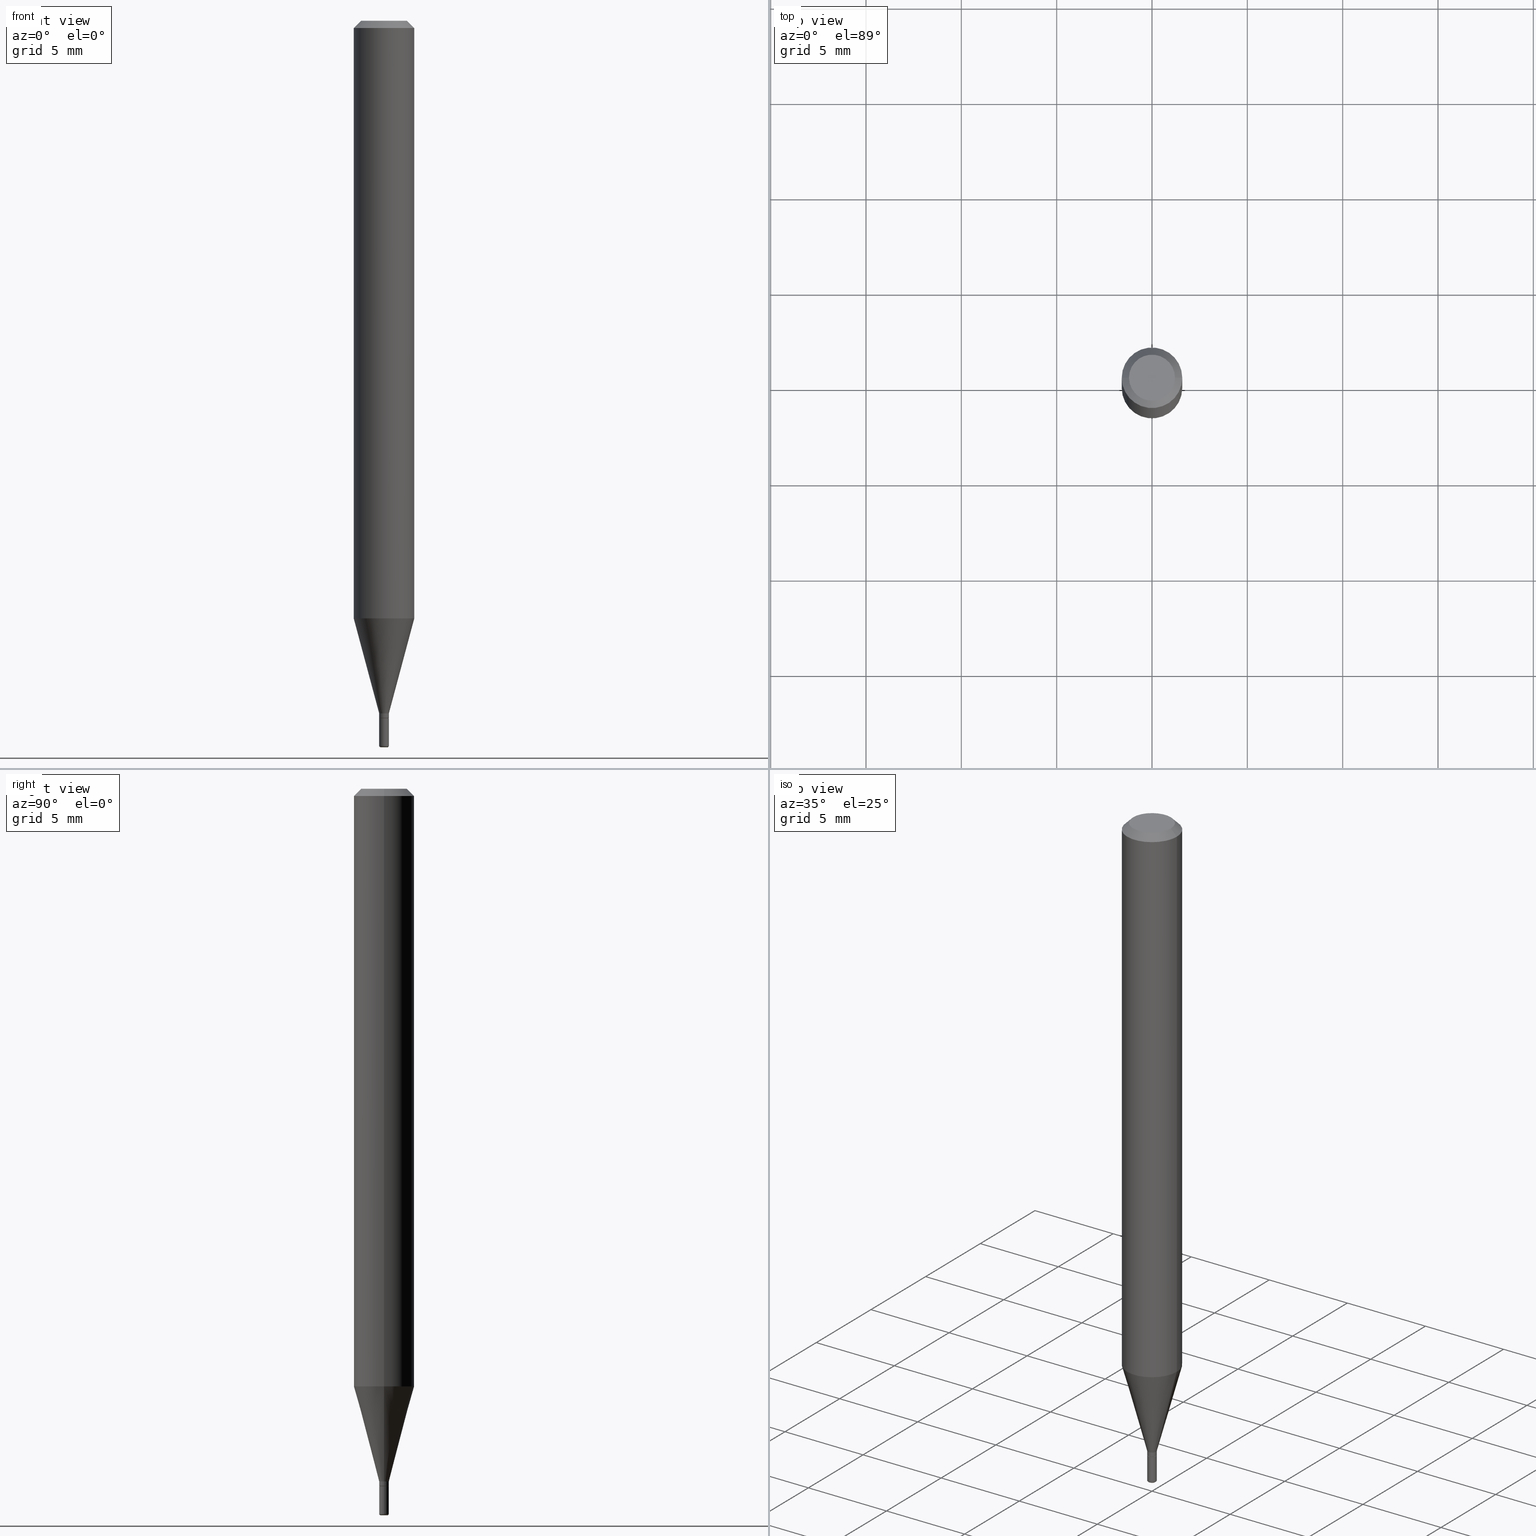
[diagram: canonical four-view strip — front | top / right | iso, engineering-drawing reading convention]
A machine part, canonical four-view strip (front | top / right | iso — engineering-drawing reading convention). The complete STEP part file that produces these views, byte-faithful:
ISO-10303-21;
HEADER;
FILE_DESCRIPTION (( 'STEP AP203' ),
    '1' );
FILE_NAME ('08503.STEP',
    '2024-02-29T19:38:58',
    ( '' ),
    ( '' ),
    'SwSTEP 2.0',
    'SolidWorks 2023',
    '' );
FILE_SCHEMA (( 'CONFIG_CONTROL_DESIGN' ));
ENDSEC;

DATA;
#1 = CALENDAR_DATE ( 2024, 29, 2 ) ;
#2 = ORIENTED_EDGE ( 'NONE', *, *, #403, .T. ) ;
#3 = MANIFOLD_SOLID_BREP ( 'Body-Move/Copy2[1]', #30 ) ;
#4 = DIRECTION ( 'NONE',  ( 1.000000000000000000, -6.982962677686266711E-15, 4.852736867747365086E-29 ) ) ;
#5 = ORIENTED_EDGE ( 'NONE', *, *, #494, .F. ) ;
#6 = CARTESIAN_POINT ( 'NONE',  ( -0.006999999999999999278, -5.177009572744982887E-15, -1.497000000000000108 ) ) ;
#7 = ORIENTED_EDGE ( 'NONE', *, *, #69, .T. ) ;
#8 = CIRCLE ( 'NONE', #479, 0.009999999999999911737 ) ;
#9 = DIRECTION ( 'NONE',  ( -2.445468806185136597E-29, 3.491481338843145583E-15, 1.000000000000000000 ) ) ;
#10 = PLANE ( 'NONE',  #27 ) ;
#11 = DIRECTION ( 'NONE',  ( -2.445468806185136597E-29, 3.491481338843145583E-15, 1.000000000000000000 ) ) ;
#12 = UNCERTAINTY_MEASURE_WITH_UNIT (LENGTH_MEASURE( 1.000000000000000082E-05 ), #420, 'distance_accuracy_value', 'NONE');
#13 = CARTESIAN_POINT ( 'NONE',  ( 3.497020392844744638E-29, -4.992818314545696633E-15, -1.429999999999999716 ) ) ;
#14 = CC_DESIGN_PERSON_AND_ORGANIZATION_ASSIGNMENT ( #463, #32, ( #215 ) ) ;
#15 = AXIS2_PLACEMENT_3D ( 'NONE', #360, #512, #239 ) ;
#16 = DIRECTION ( 'NONE',  ( -2.438088387897960049E-29, 3.491481338843145188E-15, 1.000000000000000000 ) ) ;
#17 = ADVANCED_BREP_SHAPE_REPRESENTATION ( '08503', ( #3, #175, #503 ), #438 ) ;
#18 = DIRECTION ( 'NONE',  ( 1.000000000000000000, -6.982962677686332186E-15, 0.000000000000000000 ) ) ;
#19 = ADVANCED_FACE ( 'NONE', ( #210 ), #448, .T. ) ;
#20 = CARTESIAN_POINT ( 'NONE',  ( 0.000000000000000000, 0.000000000000000000, 0.000000000000000000 ) ) ;
#21 = CIRCLE ( 'NONE', #459, 0.007000000000000001013 ) ;
#22 = DIRECTION ( 'NONE',  ( 0.000000000000000000, 0.000000000000000000, 1.000000000000000000 ) ) ;
#23 = DIRECTION ( 'NONE',  ( 1.000000000000000000, -6.982962677686235945E-15, 0.000000000000000000 ) ) ;
#24 = COORDINATED_UNIVERSAL_TIME_OFFSET ( 5, 0, .BEHIND. ) ;
#25 = CARTESIAN_POINT ( 'NONE',  ( 3.660866802859150328E-29, -5.226747564248189155E-15, -1.497000000000000108 ) ) ;
#26 = FACE_OUTER_BOUND ( 'NONE', #82, .T. ) ;
#27 = AXIS2_PLACEMENT_3D ( 'NONE', #453, #16, #483 ) ;
#28 = DIRECTION ( 'NONE',  ( 1.000000000000000000, -6.982962677686266711E-15, 4.876176775795935793E-29 ) ) ;
#29 = AXIS2_PLACEMENT_3D ( 'NONE', #366, #254, #414 ) ;
#30 = CLOSED_SHELL ( 'NONE', ( #266, #310, #206, #511, #165, #91 ) ) ;
#31 = EDGE_CURVE ( 'NONE', #153, #116, #180, .T. ) ;
#32 = PERSON_AND_ORGANIZATION_ROLE ( 'creator' ) ;
#33 = EDGE_LOOP ( 'NONE', ( #514, #244, #349, #164 ) ) ;
#34 = DIRECTION ( 'NONE',  ( 1.000000000000000000, -6.982962677686395295E-15, 0.000000000000000000 ) ) ;
#35 = EDGE_CURVE ( 'NONE', #464, #444, #43, .T. ) ;
#36 = DIRECTION ( 'NONE',  ( 1.000000000000000000, -6.982962677686239100E-15, 0.000000000000000000 ) ) ;
#37 = EDGE_LOOP ( 'NONE', ( #439, #477, #51, #79 ) ) ;
#38 = COORDINATED_UNIVERSAL_TIME_OFFSET ( 5, 0, .BEHIND. ) ;
#39 = EDGE_LOOP ( 'NONE', ( #283, #2, #401, #408 ) ) ;
#40 = DIRECTION ( 'NONE',  ( -0.7071067811866184050, 7.493145998870609751E-15, 0.7071067811864765185 ) ) ;
#41 = VECTOR ( 'NONE', #402, 39.37007874015748143 ) ;
#42 = CC_DESIGN_SECURITY_CLASSIFICATION ( #96, ( #496 ) ) ;
#43 = CIRCLE ( 'NONE', #209, 0.009999999999999911737 ) ;
#44 = AXIS2_PLACEMENT_3D ( 'NONE', #299, #145, #378 ) ;
#45 = FACE_OUTER_BOUND ( 'NONE', #325, .T. ) ;
#46 = CARTESIAN_POINT ( 'NONE',  ( 0.06250000000000000000, -4.364351673553916694E-16, 3.047610484872459871E-30 ) ) ;
#47 = ORIENTED_EDGE ( 'NONE', *, *, #129, .F. ) ;
#48 = ADVANCED_FACE ( 'NONE', ( #257 ), #307, .T. ) ;
#49 = EDGE_LOOP ( 'NONE', ( #404, #75, #281, #86 ) ) ;
#50 = CARTESIAN_POINT ( 'NONE',  ( 0.009999999999999911737, -5.062647941322559142E-15, -1.429999999999999716 ) ) ;
#51 = ORIENTED_EDGE ( 'NONE', *, *, #385, .T. ) ;
#52 = EDGE_LOOP ( 'NONE', ( #126, #113 ) ) ;
#53 = DIRECTION ( 'NONE',  ( -2.445468806185136597E-29, 3.491481338843145583E-15, 1.000000000000000000 ) ) ;
#54 = CARTESIAN_POINT ( 'NONE',  ( 3.668203209277704335E-29, -5.237222008264717388E-15, -1.499999999999999778 ) ) ;
#55 = EDGE_CURVE ( 'NONE', #274, #116, #140, .T. ) ;
#56 = DIRECTION ( 'NONE',  ( 2.445468806185136597E-29, -3.491481338843145583E-15, -1.000000000000000000 ) ) ;
#57 = LINE ( 'NONE', #336, #446 ) ;
#58 = VECTOR ( 'NONE', #425, 39.37007874015748143 ) ;
#59 = FACE_OUTER_BOUND ( 'NONE', #85, .T. ) ;
#60 = CALENDAR_DATE ( 2024, 29, 2 ) ;
#61 = CARTESIAN_POINT ( 'NONE',  ( -0.009999999999999916941, 7.105427357600942842E-17, -4.918935090254865109E-31 ) ) ;
#62 = CIRCLE ( 'NONE', #138, 0.002999999999999833963 ) ;
#63 = CIRCLE ( 'NONE', #353, 0.009499999999999918232 ) ;
#64 = CIRCLE ( 'NONE', #355, 0.009999999999999833675 ) ;
#65 = CARTESIAN_POINT ( 'NONE',  ( 3.521475080906597305E-29, -5.027733127934130649E-15, -1.440000000000000169 ) ) ;
#66 = CC_DESIGN_PERSON_AND_ORGANIZATION_ASSIGNMENT ( #358, #313, ( #96 ) ) ;
#67 = DIRECTION ( 'NONE',  ( -1.000000000000000000, 6.982962677686265922E-15, -4.876176775795935793E-29 ) ) ;
#68 = DIRECTION ( 'NONE',  ( -2.445468806185136597E-29, 3.491481338843145583E-15, 1.000000000000000000 ) ) ;
#69 = EDGE_CURVE ( 'NONE', #309, #117, #250, .T. ) ;
#70 = ORIENTED_EDGE ( 'NONE', *, *, #99, .T. ) ;
#71 = VECTOR ( 'NONE', #100, 39.37007874015748143 ) ;
#72 = DIRECTION ( 'NONE',  ( 1.000000000000000000, -6.982962677686239100E-15, 0.000000000000000000 ) ) ;
#73 = EDGE_CURVE ( 'NONE', #433, #236, #104, .T. ) ;
#74 = DIRECTION ( 'NONE',  ( -2.445468806185136877E-29, 3.491481338843145188E-15, 1.000000000000000000 ) ) ;
#75 = ORIENTED_EDGE ( 'NONE', *, *, #231, .T. ) ;
#76 = APPROVAL_DATE_TIME ( #267, #490 ) ;
#77 = CARTESIAN_POINT ( 'NONE',  ( 0.007000000000000001013, -5.286102747008521854E-15, -1.499999999999999778 ) ) ;
#78 = CALENDAR_DATE ( 2024, 29, 2 ) ;
#79 = ORIENTED_EDGE ( 'NONE', *, *, #285, .F. ) ;
#80 = CARTESIAN_POINT ( 'NONE',  ( 3.521475080906597305E-29, -5.027733127934130649E-15, -1.440000000000000169 ) ) ;
#81 = CIRCLE ( 'NONE', #501, 0.01000000000000000021 ) ;
#82 = EDGE_LOOP ( 'NONE', ( #482, #127, #119, #389 ) ) ;
#83 = ORIENTED_EDGE ( 'NONE', *, *, #108, .F. ) ;
#84 = DIRECTION ( 'NONE',  ( -1.000000000000000000, 7.105427357600930861E-15, 0.000000000000000000 ) ) ;
#85 = EDGE_LOOP ( 'NONE', ( #359, #195 ) ) ;
#86 = ORIENTED_EDGE ( 'NONE', *, *, #416, .F. ) ;
#87 = DIRECTION ( 'NONE',  ( -2.445468806185136597E-29, 3.491481338843145583E-15, 1.000000000000000000 ) ) ;
#88 = ORIENTED_EDGE ( 'NONE', *, *, #335, .T. ) ;
#89 = ORIENTED_EDGE ( 'NONE', *, *, #35, .T. ) ;
#90 = AXIS2_PLACEMENT_3D ( 'NONE', #112, #269, #4 ) ;
#91 = ADVANCED_FACE ( 'NONE', ( #220 ), #498, .F. ) ;
#92 = CARTESIAN_POINT ( 'NONE',  ( 3.668203209277632395E-31, -5.237222008264614861E-17, -0.01499999999999970281 ) ) ;
#93 = CARTESIAN_POINT ( 'NONE',  ( 0.01000000000000000021, -5.097562754710993158E-15, -1.440000000000000169 ) ) ;
#94 = CYLINDRICAL_SURFACE ( 'NONE', #29, 0.009999999999999916941 ) ;
#95 = AXIS2_PLACEMENT_3D ( 'NONE', #405, #11, #449 ) ;
#96 = SECURITY_CLASSIFICATION ( '', '', #148 ) ;
#97 =( NAMED_UNIT ( * ) SI_UNIT ( $, .STERADIAN. ) SOLID_ANGLE_UNIT ( ) );
#98 =( NAMED_UNIT ( * ) PLANE_ANGLE_UNIT ( ) SI_UNIT ( $, .RADIAN. ) );
#99 = EDGE_CURVE ( 'NONE', #122, #344, #64, .T. ) ;
#100 = DIRECTION ( 'NONE',  ( -2.445468806185136877E-29, 3.491481338843145188E-15, 1.000000000000000000 ) ) ;
#101 = APPROVAL ( #380, 'UNSPECIFIED' ) ;
#102 = AXIS2_PLACEMENT_3D ( 'NONE', #311, #158, #36 ) ;
#103 = AXIS2_PLACEMENT_3D ( 'NONE', #253, #137, #412 ) ;
#104 = CIRCLE ( 'NONE', #221, 0.01000000000000000021 ) ;
#105 = DIRECTION ( 'NONE',  ( 2.438088387897960049E-29, -3.491481338843145188E-15, -1.000000000000000000 ) ) ;
#106 = PERSON ( 'UNSPECIFIED', 'UNSPECIFIED', 'UNSPECIFIED', ('UNSPECIFIED'), ('UNSPECIFIED'), ('UNSPECIFIED') ) ;
#107 = FACE_OUTER_BOUND ( 'NONE', #234, .T. ) ;
#108 = EDGE_CURVE ( 'NONE', #276, #168, #63, .T. ) ;
#109 = CARTESIAN_POINT ( 'NONE',  ( 6.982962677689787249E-17, 0.009999999999994971245, -1.440000000000000169 ) ) ;
#110 = AXIS2_PLACEMENT_3D ( 'NONE', #190, #517, #282 ) ;
#111 = CALENDAR_DATE ( 2024, 29, 2 ) ;
#112 = CARTESIAN_POINT ( 'NONE',  ( -6.680649051745406845E-45, 9.538196290434862081E-31, 2.731847993664263218E-16 ) ) ;
#113 = ORIENTED_EDGE ( 'NONE', *, *, #456, .F. ) ;
#114 = APPROVAL_DATE_TIME ( #466, #340 ) ;
#115 = DIRECTION ( 'NONE',  ( 1.000000000000000000, -6.982962677686254878E-15, 4.883557194083108977E-29 ) ) ;
#116 = VERTEX_POINT ( 'NONE', #141 ) ;
#117 = VERTEX_POINT ( 'NONE', #303 ) ;
#118 = CARTESIAN_POINT ( 'NONE',  ( 0.006999999999999999278, -5.275628302991993622E-15, -1.497000000000000108 ) ) ;
#119 = ORIENTED_EDGE ( 'NONE', *, *, #304, .T. ) ;
#120 = DIRECTION ( 'NONE',  ( 1.000000000000000000, -6.982962677686262766E-15, 0.000000000000000000 ) ) ;
#121 = CIRCLE ( 'NONE', #90, 0.04750000000000000749 ) ;
#122 = VERTEX_POINT ( 'NONE', #225 ) ;
#123 = APPROVAL_PERSON_ORGANIZATION ( #347, #340, #506 ) ;
#124 = CLOSED_SHELL ( 'NONE', ( #136, #162, #255, #443, #19, #473, #48, #462, #407, #419, #368, #361 ) ) ;
#125 = CARTESIAN_POINT ( 'NONE',  ( 3.660866802859150328E-29, -5.226747564248189155E-15, -1.497000000000000108 ) ) ;
#126 = ORIENTED_EDGE ( 'NONE', *, *, #69, .F. ) ;
#127 = ORIENTED_EDGE ( 'NONE', *, *, #456, .T. ) ;
#128 = DIRECTION ( 'NONE',  ( -2.445468806185136877E-29, 3.491481338843145188E-15, 1.000000000000000000 ) ) ;
#129 = EDGE_CURVE ( 'NONE', #168, #396, #461, .T. ) ;
#130 = DIRECTION ( 'NONE',  ( 1.000000000000000000, -6.982962677686297476E-15, 0.000000000000000000 ) ) ;
#131 = AXIS2_PLACEMENT_3D ( 'NONE', #319, #507, #120 ) ;
#132 = DESIGN_CONTEXT ( 'detailed design', #326, 'design' ) ;
#133 = VECTOR ( 'NONE', #451, 39.37007874015748143 ) ;
#134 = DIRECTION ( 'NONE',  ( 2.438088387897960049E-29, -3.491481338843145188E-15, -1.000000000000000000 ) ) ;
#135 = FACE_OUTER_BOUND ( 'NONE', #271, .T. ) ;
#136 = ADVANCED_FACE ( 'NONE', ( #341 ), #228, .T. ) ;
#137 = DIRECTION ( 'NONE',  ( -2.445468806185136597E-29, 3.491481338843145583E-15, 1.000000000000000000 ) ) ;
#138 = AXIS2_PLACEMENT_3D ( 'NONE', #118, #275, #34 ) ;
#139 = AXIS2_PLACEMENT_3D ( 'NONE', #484, #53, #211 ) ;
#140 = LINE ( 'NONE', #223, #58 ) ;
#141 = CARTESIAN_POINT ( 'NONE',  ( -0.06250000000000000000, -1.736458431520275880E-15, -0.01499999999999970281 ) ) ;
#142 = EDGE_CURVE ( 'NONE', #396, #432, #237, .T. ) ;
#143 = LINE ( 'NONE', #465, #262 ) ;
#144 = AXIS2_PLACEMENT_3D ( 'NONE', #388, #272, #399 ) ;
#145 = DIRECTION ( 'NONE',  ( -2.445468806185136597E-29, 3.491481338843145583E-15, 1.000000000000000000 ) ) ;
#146 = ORIENTED_EDGE ( 'NONE', *, *, #440, .T. ) ;
#147 = DIRECTION ( 'NONE',  ( -2.445468806185136597E-29, 3.491481338843145583E-15, 1.000000000000000000 ) ) ;
#148 = SECURITY_CLASSIFICATION_LEVEL ( 'unclassified' ) ;
#149 = DIMENSIONAL_EXPONENTS ( 1.000000000000000000, 0.000000000000000000, 0.000000000000000000, 0.000000000000000000, 0.000000000000000000, 0.000000000000000000, 0.000000000000000000 ) ;
#150 = APPLICATION_CONTEXT ( 'configuration controlled 3d designs of mechanical parts and assemblies' ) ;
#151 = CARTESIAN_POINT ( 'NONE',  ( 0.009999999999999915207, -6.982962677686206560E-17, 4.876176775795893929E-31 ) ) ;
#152 = PERSON_AND_ORGANIZATION_ROLE ( 'design_supplier' ) ;
#153 = VERTEX_POINT ( 'NONE', #339 ) ;
#154 = CC_DESIGN_APPROVAL ( #101, ( #215 ) ) ;
#155 = DIRECTION ( 'NONE',  ( -2.445468806185136597E-29, 3.491481338843145583E-15, 1.000000000000000000 ) ) ;
#156 = ORIENTED_EDGE ( 'NONE', *, *, #346, .F. ) ;
#157 = ORIENTED_EDGE ( 'NONE', *, *, #219, .F. ) ;
#158 = DIRECTION ( 'NONE',  ( -2.445468806185136597E-29, 3.491481338843145583E-15, 1.000000000000000000 ) ) ;
#159 = CC_DESIGN_PERSON_AND_ORGANIZATION_ASSIGNMENT ( #515, #152, ( #496 ) ) ;
#160 = CYLINDRICAL_SURFACE ( 'NONE', #110, 0.009999999999999916941 ) ;
#161 = ORIENTED_EDGE ( 'NONE', *, *, #322, .F. ) ;
#162 = ADVANCED_FACE ( 'NONE', ( #455 ), #312, .T. ) ;
#163 = FACE_OUTER_BOUND ( 'NONE', #33, .T. ) ;
#164 = ORIENTED_EDGE ( 'NONE', *, *, #450, .F. ) ;
#165 = ADVANCED_FACE ( 'NONE', ( #26 ), #489, .T. ) ;
#166 = CARTESIAN_POINT ( 'NONE',  ( 3.668203209277632395E-31, -5.237222008264614861E-17, -0.01499999999999970281 ) ) ;
#167 = CARTESIAN_POINT ( 'NONE',  ( -0.009999999999999916941, -4.954933113688699852E-15, -1.439500000000000224 ) ) ;
#168 = VERTEX_POINT ( 'NONE', #418 ) ;
#169 = DIRECTION ( 'NONE',  ( 0.2588190451025205729, 1.565188264969628081E-15, 0.9659258262890684232 ) ) ;
#170 = CARTESIAN_POINT ( 'NONE',  ( 0.009999999999999911737, -5.062647941322559142E-15, -1.429999999999999716 ) ) ;
#171 = CIRCLE ( 'NONE', #409, 0.04750000000000000749 ) ;
#172 = AXIS2_PLACEMENT_3D ( 'NONE', #424, #265, #428 ) ;
#173 = PRODUCT_DEFINITION_SHAPE ( 'NONE', 'NONE',  #215 ) ;
#174 = DIRECTION ( 'NONE',  ( -1.000000000000000000, 6.982962677686266711E-15, 0.000000000000000000 ) ) ;
#175 = MANIFOLD_SOLID_BREP ( 'Body-Move/Copy2[2]', #124 ) ;
#176 = DIRECTION ( 'NONE',  ( 1.000000000000000000, -6.982962677686297476E-15, 0.000000000000000000 ) ) ;
#177 = MECHANICAL_CONTEXT ( 'NONE', #150, 'mechanical' ) ;
#178 = CARTESIAN_POINT ( 'NONE',  ( 3.520252346503504503E-29, -5.025987387264709145E-15, -1.439500000000000224 ) ) ;
#179 = AXIS2_PLACEMENT_3D ( 'NONE', #356, #392, #192 ) ;
#180 = CIRCLE ( 'NONE', #199, 0.06250000000000000000 ) ;
#181 = EDGE_CURVE ( 'NONE', #344, #236, #182, .T. ) ;
#182 = LINE ( 'NONE', #61, #71 ) ;
#183 = PERSON_AND_ORGANIZATION ( #106, #469 ) ;
#184 = DIRECTION ( 'NONE',  ( 1.000000000000000000, -6.982962677686265922E-15, 4.876176775795935232E-29 ) ) ;
#185 = DIRECTION ( 'NONE',  ( -2.445468806185136597E-29, 3.491481338843145583E-15, 1.000000000000000000 ) ) ;
#186 = AXIS2_PLACEMENT_3D ( 'NONE', #92, #246, #291 ) ;
#187 = EDGE_LOOP ( 'NONE', ( #436, #510, #470, #5 ) ) ;
#188 = DIRECTION ( 'NONE',  ( -2.445468806185136597E-29, 3.491481338843145583E-15, 1.000000000000000000 ) ) ;
#189 = DATE_AND_TIME ( #111, #279 ) ;
#190 = CARTESIAN_POINT ( 'NONE',  ( 0.000000000000000000, 0.000000000000000000, 0.000000000000000000 ) ) ;
#191 = ORIENTED_EDGE ( 'NONE', *, *, #379, .T. ) ;
#192 = DIRECTION ( 'NONE',  ( 1.000000000000000000, -6.982962677686265922E-15, 4.876176775795935232E-29 ) ) ;
#193 = AXIS2_PLACEMENT_3D ( 'NONE', #109, #105, #67 ) ;
#194 = PERSON_AND_ORGANIZATION ( #106, #469 ) ;
#195 = ORIENTED_EDGE ( 'NONE', *, *, #302, .T. ) ;
#196 = CC_DESIGN_APPROVAL ( #340, ( #496 ) ) ;
#197 = EDGE_CURVE ( 'NONE', #444, #274, #143, .T. ) ;
#198 = CARTESIAN_POINT ( 'NONE',  ( -0.009999999999999833675, -5.056186072515151004E-15, -1.497000000000000108 ) ) ;
#199 = AXIS2_PLACEMENT_3D ( 'NONE', #166, #9, #240 ) ;
#200 = AXIS2_PLACEMENT_3D ( 'NONE', #178, #497, #297 ) ;
#201 = ORIENTED_EDGE ( 'NONE', *, *, #416, .T. ) ;
#202 = DATE_AND_TIME ( #78, #415 ) ;
#203 = CARTESIAN_POINT ( 'NONE',  ( -0.06249999999999999306, -3.864633852807968480E-15, -1.234067332602633238 ) ) ;
#204 = ORIENTED_EDGE ( 'NONE', *, *, #226, .T. ) ;
#205 = CARTESIAN_POINT ( 'NONE',  ( -0.009999999999999998473, -5.056186072515150215E-15, -1.440000000000000169 ) ) ;
#206 = ADVANCED_FACE ( 'NONE', ( #107 ), #460, .F. ) ;
#207 = CARTESIAN_POINT ( 'NONE',  ( 0.06250000000000000000, -4.811533449433669144E-16, -0.01499999999999970281 ) ) ;
#208 = VERTEX_POINT ( 'NONE', #224 ) ;
#209 = AXIS2_PLACEMENT_3D ( 'NONE', #321, #478, #338 ) ;
#210 = FACE_OUTER_BOUND ( 'NONE', #481, .T. ) ;
#211 = DIRECTION ( 'NONE',  ( 1.000000000000000000, -6.982962677686297476E-15, 0.000000000000000000 ) ) ;
#212 = DIRECTION ( 'NONE',  ( -0.7071067811865479058, 2.468850131082261005E-15, -0.7071067811865471286 ) ) ;
#213 = FACE_OUTER_BOUND ( 'NONE', #229, .T. ) ;
#214 = DIRECTION ( 'NONE',  ( -1.000000000000000000, 6.982962677686265922E-15, -4.876176775795935793E-29 ) ) ;
#215 = PRODUCT_DEFINITION ( 'UNKNOWN', '', #496, #132 ) ;
#216 = CONICAL_SURFACE ( 'NONE', #421, 0.009499999999999918232, 0.7853981633975486432 ) ;
#217 = CIRCLE ( 'NONE', #103, 0.009999999999999916941 ) ;
#218 = CARTESIAN_POINT ( 'NONE',  ( 3.497020392844744638E-29, -4.992818314545696633E-15, -1.429999999999999716 ) ) ;
#219 = EDGE_CURVE ( 'NONE', #306, #153, #382, .T. ) ;
#220 = FACE_OUTER_BOUND ( 'NONE', #52, .T. ) ;
#221 = AXIS2_PLACEMENT_3D ( 'NONE', #65, #185, #23 ) ;
#222 = DIRECTION ( 'NONE',  ( 1.000000000000000000, 0.000000000000000000, 0.000000000000000000 ) ) ;
#223 = CARTESIAN_POINT ( 'NONE',  ( -0.06250000000000000000, 4.440892098500626162E-16, -3.074334431409316114E-30 ) ) ;
#224 = CARTESIAN_POINT ( 'NONE',  ( -0.04750000000000000749, 3.578768372314221353E-16, 2.731847993664239060E-16 ) ) ;
#225 = CARTESIAN_POINT ( 'NONE',  ( 0.009999999999999833675, -5.296577191025050876E-15, -1.497000000000000108 ) ) ;
#226 = EDGE_CURVE ( 'NONE', #168, #276, #294, .T. ) ;
#227 = CIRCLE ( 'NONE', #131, 0.06250000000000000000 ) ;
#228 = CYLINDRICAL_SURFACE ( 'NONE', #301, 0.009999999999999915207 ) ;
#229 = EDGE_LOOP ( 'NONE', ( #247, #83 ) ) ;
#230 = CYLINDRICAL_SURFACE ( 'NONE', #179, 0.009999999999999915207 ) ;
#231 = EDGE_CURVE ( 'NONE', #274, #306, #513, .T. ) ;
#232 = EDGE_LOOP ( 'NONE', ( #204, #317, #245, #47 ) ) ;
#233 = CALENDAR_DATE ( 2024, 29, 2 ) ;
#234 = EDGE_LOOP ( 'NONE', ( #393, #363 ) ) ;
#235 = DIRECTION ( 'NONE',  ( 7.105427357601001859E-15, 1.000000000000000000, -3.491481338843145583E-15 ) ) ;
#236 = VERTEX_POINT ( 'NONE', #205 ) ;
#237 = CIRCLE ( 'NONE', #200, 0.009999999999999916941 ) ;
#238 = ORIENTED_EDGE ( 'NONE', *, *, #99, .F. ) ;
#239 = DIRECTION ( 'NONE',  ( 1.000000000000000000, -6.982962677686262766E-15, 0.000000000000000000 ) ) ;
#240 = DIRECTION ( 'NONE',  ( 1.000000000000000000, -6.982962677686266711E-15, 0.000000000000000000 ) ) ;
#241 = PERSON_AND_ORGANIZATION_ROLE ( 'creator' ) ;
#242 = ORIENTED_EDGE ( 'NONE', *, *, #197, .F. ) ;
#243 = DIRECTION ( 'NONE',  ( -2.445468806185136597E-29, 3.491481338843145583E-15, 1.000000000000000000 ) ) ;
#244 = ORIENTED_EDGE ( 'NONE', *, *, #494, .T. ) ;
#245 = ORIENTED_EDGE ( 'NONE', *, *, #142, .F. ) ;
#246 = DIRECTION ( 'NONE',  ( -2.445468806185136597E-29, 3.491481338843145583E-15, 1.000000000000000000 ) ) ;
#247 = ORIENTED_EDGE ( 'NONE', *, *, #226, .F. ) ;
#248 = VECTOR ( 'NONE', #411, 39.37007874015748143 ) ;
#249 =( LENGTH_UNIT ( ) NAMED_UNIT ( * ) SI_UNIT ( $, .METRE. ) );
#250 = CIRCLE ( 'NONE', #315, 0.007000000000000001013 ) ;
#251 = CARTESIAN_POINT ( 'NONE',  ( 3.316907271900976589E-16, 0.04750000000000000749, -2.925296391183627249E-17 ) ) ;
#252 = CC_DESIGN_PERSON_AND_ORGANIZATION_ASSIGNMENT ( #476, #241, ( #496 ) ) ;
#253 = CARTESIAN_POINT ( 'NONE',  ( 3.520252346503504503E-29, -5.025987387264709145E-15, -1.439500000000000224 ) ) ;
#254 = DIRECTION ( 'NONE',  ( -2.445468806185136597E-29, 3.491481338843145583E-15, 1.000000000000000000 ) ) ;
#255 = ADVANCED_FACE ( 'NONE', ( #441 ), #371, .T. ) ;
#256 = PERSON_AND_ORGANIZATION ( #106, #469 ) ;
#257 = FACE_OUTER_BOUND ( 'NONE', #49, .T. ) ;
#258 = LENGTH_MEASURE_WITH_UNIT ( LENGTH_MEASURE( 0.02539999999999999897 ), #249 );
#259 = DIRECTION ( 'NONE',  ( -2.445468806185136597E-29, 3.491481338843145583E-15, 1.000000000000000000 ) ) ;
#260 = CIRCLE ( 'NONE', #186, 0.06250000000000000000 ) ;
#261 = CC_DESIGN_APPROVAL ( #490, ( #96 ) ) ;
#262 = VECTOR ( 'NONE', #300, 39.37007874015748143 ) ;
#263 = DIRECTION ( 'NONE',  ( 1.000000000000000000, -6.982962677686332186E-15, 0.000000000000000000 ) ) ;
#264 = CARTESIAN_POINT ( 'NONE',  ( 0.000000000000000000, 0.000000000000000000, 0.000000000000000000 ) ) ;
#265 = DIRECTION ( 'NONE',  ( -2.438088387897960049E-29, 3.491481338843145188E-15, 1.000000000000000000 ) ) ;
#266 = ADVANCED_FACE ( 'NONE', ( #45 ), #364, .T. ) ;
#267 = DATE_AND_TIME ( #1, #487 ) ;
#268 = AXIS2_PLACEMENT_3D ( 'NONE', #264, #502, #28 ) ;
#269 = DIRECTION ( 'NONE',  ( -2.445468806185136597E-29, 3.491481338843145583E-15, 1.000000000000000000 ) ) ;
#270 = EDGE_CURVE ( 'NONE', #276, #432, #395, .T. ) ;
#271 = EDGE_LOOP ( 'NONE', ( #242, #354, #191, #391 ) ) ;
#272 = DIRECTION ( 'NONE',  ( 2.445468806185136597E-29, -3.491481338843145583E-15, -1.000000000000000000 ) ) ;
#273 = EDGE_LOOP ( 'NONE', ( #88, #504, #292, #157 ) ) ;
#274 = VERTEX_POINT ( 'NONE', #203 ) ;
#275 = DIRECTION ( 'NONE',  ( -6.982962677686266711E-15, -1.000000000000000000, 3.491481338843145583E-15 ) ) ;
#276 = VERTEX_POINT ( 'NONE', #442 ) ;
#277 = AXIS2_PLACEMENT_3D ( 'NONE', #6, #235, #84 ) ;
#278 = ORIENTED_EDGE ( 'NONE', *, *, #335, .F. ) ;
#279 = LOCAL_TIME ( 14, 38, 58.00000000000000000, #509 ) ;
#280 = FACE_OUTER_BOUND ( 'NONE', #187, .T. ) ;
#281 = ORIENTED_EDGE ( 'NONE', *, *, #219, .T. ) ;
#282 = DIRECTION ( 'NONE',  ( 1.000000000000000000, -6.982962677686266711E-15, 4.876176775795935232E-29 ) ) ;
#283 = ORIENTED_EDGE ( 'NONE', *, *, #302, .F. ) ;
#284 = LINE ( 'NONE', #372, #248 ) ;
#285 = EDGE_CURVE ( 'NONE', #236, #433, #81, .T. ) ;
#286 = AXIS2_PLACEMENT_3D ( 'NONE', #125, #87, #115 ) ;
#287 = LINE ( 'NONE', #491, #288 ) ;
#288 = VECTOR ( 'NONE', #212, 39.37007874015748143 ) ;
#289 = EDGE_CURVE ( 'NONE', #117, #344, #333, .T. ) ;
#290 = FACE_OUTER_BOUND ( 'NONE', #273, .T. ) ;
#291 = DIRECTION ( 'NONE',  ( 1.000000000000000000, -6.982962677686266711E-15, 0.000000000000000000 ) ) ;
#292 = ORIENTED_EDGE ( 'NONE', *, *, #31, .F. ) ;
#293 = LINE ( 'NONE', #170, #413 ) ;
#294 = CIRCLE ( 'NONE', #102, 0.009499999999999918232 ) ;
#295 = LOCAL_TIME ( 14, 38, 58.00000000000000000, #24 ) ;
#296 = PERSON_AND_ORGANIZATION_ROLE ( 'design_owner' ) ;
#297 = DIRECTION ( 'NONE',  ( 1.000000000000000000, -6.982962677686294321E-15, 0.000000000000000000 ) ) ;
#298 = DATE_AND_TIME ( #60, #295 ) ;
#299 = CARTESIAN_POINT ( 'NONE',  ( 3.660866802859150328E-29, -5.226747564248189155E-15, -1.497000000000000108 ) ) ;
#300 = DIRECTION ( 'NONE',  ( -0.2588190451025205729, 5.211531920934545520E-15, 0.9659258262890684232 ) ) ;
#301 = AXIS2_PLACEMENT_3D ( 'NONE', #20, #259, #184 ) ;
#302 = EDGE_CURVE ( 'NONE', #445, #208, #121, .T. ) ;
#303 = CARTESIAN_POINT ( 'NONE',  ( -0.007000000000000001013, -5.171588653716845491E-15, -1.499999999999999778 ) ) ;
#304 = EDGE_CURVE ( 'NONE', #309, #122, #62, .T. ) ;
#305 = SHAPE_DEFINITION_REPRESENTATION ( #173, #17 ) ;
#306 = VERTEX_POINT ( 'NONE', #348 ) ;
#307 = CYLINDRICAL_SURFACE ( 'NONE', #268, 0.06250000000000000000 ) ;
#308 = APPROVAL_ROLE ( '' ) ;
#309 = VERTEX_POINT ( 'NONE', #77 ) ;
#310 = ADVANCED_FACE ( 'NONE', ( #431 ), #160, .T. ) ;
#311 = CARTESIAN_POINT ( 'NONE',  ( 3.521475080906597305E-29, -5.027733127934130649E-15, -1.440000000000000169 ) ) ;
#312 = CONICAL_SURFACE ( 'NONE', #452, 0.009499999999999918232, 0.7853981633975486432 ) ;
#313 = PERSON_AND_ORGANIZATION_ROLE ( 'classification_officer' ) ;
#314 = ORIENTED_EDGE ( 'NONE', *, *, #289, .T. ) ;
#315 = AXIS2_PLACEMENT_3D ( 'NONE', #422, #188, #263 ) ;
#316 = DIRECTION ( 'NONE',  ( 1.000000000000000000, -6.982962677686254878E-15, 0.000000000000000000 ) ) ;
#317 = ORIENTED_EDGE ( 'NONE', *, *, #270, .T. ) ;
#318 = DIRECTION ( 'NONE',  ( 1.000000000000000000, -6.982962677686266711E-15, 4.852736867747365086E-29 ) ) ;
#319 = CARTESIAN_POINT ( 'NONE',  ( 3.017873166611837280E-29, -4.308723062658031096E-15, -1.234067332602633238 ) ) ;
#320 = EDGE_LOOP ( 'NONE', ( #387, #161, #367, #201 ) ) ;
#321 = CARTESIAN_POINT ( 'NONE',  ( 3.497020392844744638E-29, -4.992818314545696633E-15, -1.429999999999999716 ) ) ;
#322 = EDGE_CURVE ( 'NONE', #208, #445, #171, .T. ) ;
#323 = AXIS2_PLACEMENT_3D ( 'NONE', #13, #334, #176 ) ;
#324 = DIRECTION ( 'NONE',  ( -2.445468806185136597E-29, 3.491481338843145583E-15, 1.000000000000000000 ) ) ;
#325 = EDGE_LOOP ( 'NONE', ( #7, #314, #238, #474 ) ) ;
#326 = APPLICATION_CONTEXT ( 'configuration controlled 3d designs of mechanical parts and assemblies' ) ;
#327 = CARTESIAN_POINT ( 'NONE',  ( -0.009999999999999911737, -4.393198946888827121E-15, -1.429999999999999716 ) ) ;
#328 = ORIENTED_EDGE ( 'NONE', *, *, #385, .F. ) ;
#329 = DIRECTION ( 'NONE',  ( -2.445468806185136597E-29, 3.491481338843145583E-15, 1.000000000000000000 ) ) ;
#330 = CC_DESIGN_PERSON_AND_ORGANIZATION_ASSIGNMENT ( #256, #296, ( #500 ) ) ;
#331 = VECTOR ( 'NONE', #381, 39.37007874015748854 ) ;
#332 = LINE ( 'NONE', #207, #133 ) ;
#333 = CIRCLE ( 'NONE', #277, 0.002999999999999833963 ) ;
#334 = DIRECTION ( 'NONE',  ( -2.445468806185136597E-29, 3.491481338843145583E-15, 1.000000000000000000 ) ) ;
#335 = EDGE_CURVE ( 'NONE', #306, #274, #227, .T. ) ;
#336 = CARTESIAN_POINT ( 'NONE',  ( 0.009999999999999916941, -6.982962677686209025E-17, 4.876176775795894805E-31 ) ) ;
#337 = DIRECTION ( 'NONE',  ( -2.445468806185136597E-29, 3.491481338843145583E-15, 1.000000000000000000 ) ) ;
#338 = DIRECTION ( 'NONE',  ( 1.000000000000000000, -6.982962677686297476E-15, 0.000000000000000000 ) ) ;
#339 = CARTESIAN_POINT ( 'NONE',  ( 0.06250000000000000000, -4.888073874380378612E-16, -0.01499999999999970281 ) ) ;
#340 = APPROVAL ( #390, 'UNSPECIFIED' ) ;
#341 = FACE_OUTER_BOUND ( 'NONE', #518, .T. ) ;
#342 = AXIS2_PLACEMENT_3D ( 'NONE', #480, #155, #316 ) ;
#343 = APPROVAL_PERSON_ORGANIZATION ( #183, #101, #454 ) ;
#344 = VERTEX_POINT ( 'NONE', #198 ) ;
#345 = DIRECTION ( 'NONE',  ( 1.000000000000000000, -6.982962677686254878E-15, 0.000000000000000000 ) ) ;
#346 = EDGE_CURVE ( 'NONE', #396, #464, #351, .T. ) ;
#347 = PERSON_AND_ORGANIZATION ( #106, #469 ) ;
#348 = CARTESIAN_POINT ( 'NONE',  ( 0.06249999999999999306, -4.745158230013422766E-15, -1.234067332602633238 ) ) ;
#349 = ORIENTED_EDGE ( 'NONE', *, *, #346, .T. ) ;
#350 = COORDINATED_UNIVERSAL_TIME_OFFSET ( 5, 0, .BEHIND. ) ;
#351 = LINE ( 'NONE', #151, #429 ) ;
#352 = LOCAL_TIME ( 14, 38, 58.00000000000000000, #400 ) ;
#353 = AXIS2_PLACEMENT_3D ( 'NONE', #505, #337, #72 ) ;
#354 = ORIENTED_EDGE ( 'NONE', *, *, #450, .T. ) ;
#355 = AXIS2_PLACEMENT_3D ( 'NONE', #25, #68, #345 ) ;
#356 = CARTESIAN_POINT ( 'NONE',  ( 0.000000000000000000, 0.000000000000000000, 0.000000000000000000 ) ) ;
#357 = ORIENTED_EDGE ( 'NONE', *, *, #35, .F. ) ;
#358 = PERSON_AND_ORGANIZATION ( #106, #469 ) ;
#359 = ORIENTED_EDGE ( 'NONE', *, *, #322, .T. ) ;
#360 = CARTESIAN_POINT ( 'NONE',  ( 3.017873166611837280E-29, -4.308723062658031096E-15, -1.234067332602633238 ) ) ;
#361 = ADVANCED_FACE ( 'NONE', ( #163 ), #230, .T. ) ;
#362 = CARTESIAN_POINT ( 'NONE',  ( 3.521475080906597305E-29, -5.027733127934130649E-15, -1.440000000000000169 ) ) ;
#363 = ORIENTED_EDGE ( 'NONE', *, *, #285, .T. ) ;
#364 = TOROIDAL_SURFACE ( 'NONE', #286, 0.006999999999999999278, 0.002999999999999834830 ) ;
#365 = CONICAL_SURFACE ( 'NONE', #323, 0.009999999999999911737, 0.2617993877991492413 ) ;
#366 = CARTESIAN_POINT ( 'NONE',  ( 0.000000000000000000, 0.000000000000000000, 0.000000000000000000 ) ) ;
#367 = ORIENTED_EDGE ( 'NONE', *, *, #492, .T. ) ;
#368 = ADVANCED_FACE ( 'NONE', ( #280 ), #216, .T. ) ;
#369 = FACE_OUTER_BOUND ( 'NONE', #37, .T. ) ;
#370 = CARTESIAN_POINT ( 'NONE',  ( 0.04750000000000000749, -4.035134999187568762E-16, 2.731847993664288856E-16 ) ) ;
#371 = CONICAL_SURFACE ( 'NONE', #144, 0.06250000000000000000, 0.7853981633974488341 ) ;
#372 = CARTESIAN_POINT ( 'NONE',  ( -0.009999999999999915207, 7.105427357600941609E-17, -4.918935090254864233E-31 ) ) ;
#373 = FACE_OUTER_BOUND ( 'NONE', #320, .T. ) ;
#374 = CC_DESIGN_DATE_AND_TIME_ASSIGNMENT ( #202, #426, ( #96 ) ) ;
#375 = CARTESIAN_POINT ( 'NONE',  ( 0.000000000000000000, 0.000000000000000000, 0.000000000000000000 ) ) ;
#376 = EDGE_CURVE ( 'NONE', #344, #122, #377, .T. ) ;
#377 = CIRCLE ( 'NONE', #342, 0.009999999999999833675 ) ;
#378 = DIRECTION ( 'NONE',  ( 1.000000000000000000, -6.982962677686254878E-15, 4.883557194083108977E-29 ) ) ;
#379 = EDGE_CURVE ( 'NONE', #464, #306, #293, .T. ) ;
#380 = APPROVAL_STATUS ( 'not_yet_approved' ) ;
#381 = DIRECTION ( 'NONE',  ( 0.7071067811866184050, -2.468850131082999773E-15, 0.7071067811864765185 ) ) ;
#382 = LINE ( 'NONE', #46, #41 ) ;
#383 = CARTESIAN_POINT ( 'NONE',  ( 0.009499999999999918232, -5.094071273372149362E-15, -1.440000000000000169 ) ) ;
#384 = CONICAL_SURFACE ( 'NONE', #423, 0.06250000000000000000, 0.7853981633974488341 ) ;
#385 = EDGE_CURVE ( 'NONE', #122, #433, #57, .T. ) ;
#386 = APPROVAL_PERSON_ORGANIZATION ( #194, #490, #308 ) ;
#387 = ORIENTED_EDGE ( 'NONE', *, *, #403, .F. ) ;
#388 = CARTESIAN_POINT ( 'NONE',  ( 3.668203209277632395E-31, -5.237222008264614861E-17, -0.01499999999999970281 ) ) ;
#389 = ORIENTED_EDGE ( 'NONE', *, *, #376, .F. ) ;
#390 = APPROVAL_STATUS ( 'not_yet_approved' ) ;
#391 = ORIENTED_EDGE ( 'NONE', *, *, #231, .F. ) ;
#392 = DIRECTION ( 'NONE',  ( -2.445468806185136597E-29, 3.491481338843145583E-15, 1.000000000000000000 ) ) ;
#393 = ORIENTED_EDGE ( 'NONE', *, *, #73, .T. ) ;
#394 = DATE_TIME_ROLE ( 'creation_date' ) ;
#395 = LINE ( 'NONE', #472, #486 ) ;
#396 = VERTEX_POINT ( 'NONE', #410 ) ;
#397 = EDGE_LOOP ( 'NONE', ( #70, #508, #471, #328 ) ) ;
#398 = PRODUCT_RELATED_PRODUCT_CATEGORY ( 'detail', '', ( #500 ) ) ;
#399 = DIRECTION ( 'NONE',  ( -1.000000000000000000, 6.982962677686266711E-15, 0.000000000000000000 ) ) ;
#400 = COORDINATED_UNIVERSAL_TIME_OFFSET ( 5, 0, .BEHIND. ) ;
#401 = ORIENTED_EDGE ( 'NONE', *, *, #31, .T. ) ;
#402 = DIRECTION ( 'NONE',  ( -2.445468806185136877E-29, 3.491481338843145188E-15, 1.000000000000000000 ) ) ;
#403 = EDGE_CURVE ( 'NONE', #445, #153, #332, .T. ) ;
#404 = ORIENTED_EDGE ( 'NONE', *, *, #55, .F. ) ;
#405 = CARTESIAN_POINT ( 'NONE',  ( 0.000000000000000000, 0.000000000000000000, 0.000000000000000000 ) ) ;
#406 = ORIENTED_EDGE ( 'NONE', *, *, #142, .T. ) ;
#407 = ADVANCED_FACE ( 'NONE', ( #59 ), #488, .F. ) ;
#408 = ORIENTED_EDGE ( 'NONE', *, *, #492, .F. ) ;
#409 = AXIS2_PLACEMENT_3D ( 'NONE', #437, #243, #318 ) ;
#410 = CARTESIAN_POINT ( 'NONE',  ( 0.009999999999999916941, -5.095817014041571654E-15, -1.439500000000000224 ) ) ;
#411 = DIRECTION ( 'NONE',  ( -2.445468806185136877E-29, 3.491481338843145188E-15, 1.000000000000000000 ) ) ;
#412 = DIRECTION ( 'NONE',  ( 1.000000000000000000, -6.982962677686294321E-15, 0.000000000000000000 ) ) ;
#413 = VECTOR ( 'NONE', #169, 39.37007874015748143 ) ;
#414 = DIRECTION ( 'NONE',  ( 1.000000000000000000, -6.982962677686266711E-15, 4.876176775795935232E-29 ) ) ;
#415 = LOCAL_TIME ( 14, 38, 58.00000000000000000, #350 ) ;
#416 = EDGE_CURVE ( 'NONE', #116, #153, #260, .T. ) ;
#417 = APPLICATION_PROTOCOL_DEFINITION ( 'international standard', 'config_control_design', 1994, #326 ) ;
#418 = CARTESIAN_POINT ( 'NONE',  ( 0.009499999999999918232, -5.094071273372149362E-15, -1.440000000000000169 ) ) ;
#419 = ADVANCED_FACE ( 'NONE', ( #213 ), #10, .F. ) ;
#420 =( CONVERSION_BASED_UNIT ( 'INCH', #258 ) LENGTH_UNIT ( ) NAMED_UNIT ( #149 ) );
#421 = AXIS2_PLACEMENT_3D ( 'NONE', #80, #324, #475 ) ;
#422 = CARTESIAN_POINT ( 'NONE',  ( 3.668203209277704335E-29, -5.237222008264717388E-15, -1.499999999999999778 ) ) ;
#423 = AXIS2_PLACEMENT_3D ( 'NONE', #447, #56, #174 ) ;
#424 = CARTESIAN_POINT ( 'NONE',  ( 3.582686580359765478E-29, -5.359686688179452536E-15, -1.499999999999999778 ) ) ;
#425 = DIRECTION ( 'NONE',  ( -2.445468806185136877E-29, 3.491481338843145188E-15, 1.000000000000000000 ) ) ;
#426 = DATE_TIME_ROLE ( 'classification_date' ) ;
#427 = ORIENTED_EDGE ( 'NONE', *, *, #197, .T. ) ;
#428 = DIRECTION ( 'NONE',  ( 1.000000000000000000, -6.982962677686265922E-15, 4.876176775795935793E-29 ) ) ;
#429 = VECTOR ( 'NONE', #74, 39.37007874015748143 ) ;
#430 = APPROVAL_STATUS ( 'not_yet_approved' ) ;
#431 = FACE_OUTER_BOUND ( 'NONE', #397, .T. ) ;
#432 = VERTEX_POINT ( 'NONE', #167 ) ;
#433 = VERTEX_POINT ( 'NONE', #93 ) ;
#434 = DIRECTION ( 'NONE',  ( -2.445468806185136597E-29, 3.491481338843145583E-15, 1.000000000000000000 ) ) ;
#435 = CC_DESIGN_DATE_AND_TIME_ASSIGNMENT ( #189, #394, ( #215 ) ) ;
#436 = ORIENTED_EDGE ( 'NONE', *, *, #270, .F. ) ;
#437 = CARTESIAN_POINT ( 'NONE',  ( -6.680649051745406845E-45, 9.538196290434862081E-31, 2.731847993664263218E-16 ) ) ;
#438 =( GEOMETRIC_REPRESENTATION_CONTEXT ( 3 ) GLOBAL_UNCERTAINTY_ASSIGNED_CONTEXT ( ( #12 ) ) GLOBAL_UNIT_ASSIGNED_CONTEXT ( ( #420, #98, #97 ) ) REPRESENTATION_CONTEXT ( 'NONE', 'WORKASPACE' ) );
#439 = ORIENTED_EDGE ( 'NONE', *, *, #181, .F. ) ;
#440 = EDGE_CURVE ( 'NONE', #432, #444, #284, .T. ) ;
#441 = FACE_OUTER_BOUND ( 'NONE', #39, .T. ) ;
#442 = CARTESIAN_POINT ( 'NONE',  ( -0.009499999999999918232, -4.957582340862811053E-15, -1.440000000000000169 ) ) ;
#443 = ADVANCED_FACE ( 'NONE', ( #290 ), #485, .T. ) ;
#444 = VERTEX_POINT ( 'NONE', #327 ) ;
#445 = VERTEX_POINT ( 'NONE', #370 ) ;
#446 = VECTOR ( 'NONE', #128, 39.37007874015748143 ) ;
#447 = CARTESIAN_POINT ( 'NONE',  ( 3.668203209277632395E-31, -5.237222008264614861E-17, -0.01499999999999970281 ) ) ;
#448 = CONICAL_SURFACE ( 'NONE', #139, 0.009999999999999911737, 0.2617993877991492413 ) ;
#449 = DIRECTION ( 'NONE',  ( 1.000000000000000000, -6.982962677686266711E-15, 4.876176775795935793E-29 ) ) ;
#450 = EDGE_CURVE ( 'NONE', #444, #464, #8, .T. ) ;
#451 = DIRECTION ( 'NONE',  ( 0.7071067811865479058, -7.319954787623257623E-15, -0.7071067811865471286 ) ) ;
#452 = AXIS2_PLACEMENT_3D ( 'NONE', #499, #147, #458 ) ;
#453 = CARTESIAN_POINT ( 'NONE',  ( 3.521475080906597305E-29, -5.027733127934130649E-15, -1.440000000000000169 ) ) ;
#454 = APPROVAL_ROLE ( '' ) ;
#455 = FACE_OUTER_BOUND ( 'NONE', #232, .T. ) ;
#456 = EDGE_CURVE ( 'NONE', #117, #309, #21, .T. ) ;
#457 = APPROVAL_DATE_TIME ( #298, #101 ) ;
#458 = DIRECTION ( 'NONE',  ( 1.000000000000000000, -6.982962677686239100E-15, 0.000000000000000000 ) ) ;
#459 = AXIS2_PLACEMENT_3D ( 'NONE', #54, #493, #18 ) ;
#460 = PLANE ( 'NONE',  #193 ) ;
#461 = LINE ( 'NONE', #383, #331 ) ;
#462 = ADVANCED_FACE ( 'NONE', ( #373 ), #384, .T. ) ;
#463 = PERSON_AND_ORGANIZATION ( #106, #469 ) ;
#464 = VERTEX_POINT ( 'NONE', #50 ) ;
#465 = CARTESIAN_POINT ( 'NONE',  ( -0.009999999999999911737, -4.921764040969687340E-15, -1.429999999999999716 ) ) ;
#466 = DATE_AND_TIME ( #233, #352 ) ;
#467 = DIRECTION ( 'NONE',  ( 1.000000000000000000, -6.982962677686235945E-15, 0.000000000000000000 ) ) ;
#468 = AXIS2_PLACEMENT_3D ( 'NONE', #251, #134, #214 ) ;
#469 = ORGANIZATION ( 'UNSPECIFIED', 'UNSPECIFIED', '' ) ;
#470 = ORIENTED_EDGE ( 'NONE', *, *, #129, .T. ) ;
#471 = ORIENTED_EDGE ( 'NONE', *, *, #73, .F. ) ;
#472 = CARTESIAN_POINT ( 'NONE',  ( -0.009499999999999918232, -4.960231568036922254E-15, -1.440000000000000169 ) ) ;
#473 = ADVANCED_FACE ( 'NONE', ( #135 ), #365, .T. ) ;
#474 = ORIENTED_EDGE ( 'NONE', *, *, #304, .F. ) ;
#475 = DIRECTION ( 'NONE',  ( 1.000000000000000000, -6.982962677686239100E-15, 0.000000000000000000 ) ) ;
#476 = PERSON_AND_ORGANIZATION ( #106, #469 ) ;
#477 = ORIENTED_EDGE ( 'NONE', *, *, #376, .T. ) ;
#478 = DIRECTION ( 'NONE',  ( -2.445468806185136597E-29, 3.491481338843145583E-15, 1.000000000000000000 ) ) ;
#479 = AXIS2_PLACEMENT_3D ( 'NONE', #218, #329, #130 ) ;
#480 = CARTESIAN_POINT ( 'NONE',  ( 3.660866802859150328E-29, -5.226747564248189155E-15, -1.497000000000000108 ) ) ;
#481 = EDGE_LOOP ( 'NONE', ( #89, #427, #278, #516 ) ) ;
#482 = ORIENTED_EDGE ( 'NONE', *, *, #289, .F. ) ;
#483 = DIRECTION ( 'NONE',  ( 1.000000000000000000, -6.982962677686265922E-15, 4.876176775795935793E-29 ) ) ;
#484 = CARTESIAN_POINT ( 'NONE',  ( 3.497020392844744638E-29, -4.992818314545696633E-15, -1.429999999999999716 ) ) ;
#485 = CYLINDRICAL_SURFACE ( 'NONE', #95, 0.06250000000000000000 ) ;
#486 = VECTOR ( 'NONE', #40, 39.37007874015748854 ) ;
#487 = LOCAL_TIME ( 14, 38, 58.00000000000000000, #38 ) ;
#488 = PLANE ( 'NONE',  #468 ) ;
#489 = TOROIDAL_SURFACE ( 'NONE', #44, 0.006999999999999999278, 0.002999999999999834830 ) ;
#490 = APPROVAL ( #430, 'UNSPECIFIED' ) ;
#491 = CARTESIAN_POINT ( 'NONE',  ( -0.06250000000000000000, 3.840629472727455270E-16, -0.01499999999999970281 ) ) ;
#492 = EDGE_CURVE ( 'NONE', #208, #116, #287, .T. ) ;
#493 = DIRECTION ( 'NONE',  ( -2.445468806185136597E-29, 3.491481338843145583E-15, 1.000000000000000000 ) ) ;
#494 = EDGE_CURVE ( 'NONE', #432, #396, #217, .T. ) ;
#495 = APPLICATION_PROTOCOL_DEFINITION ( 'international standard', 'config_control_design', 1994, #150 ) ;
#496 = PRODUCT_DEFINITION_FORMATION_WITH_SPECIFIED_SOURCE ( 'ANY', '', #500, .NOT_KNOWN. ) ;
#497 = DIRECTION ( 'NONE',  ( -2.445468806185136597E-29, 3.491481338843145583E-15, 1.000000000000000000 ) ) ;
#498 = PLANE ( 'NONE',  #172 ) ;
#499 = CARTESIAN_POINT ( 'NONE',  ( 3.521475080906597305E-29, -5.027733127934130649E-15, -1.440000000000000169 ) ) ;
#500 = PRODUCT ( '08503', '08503', '', ( #177 ) ) ;
#501 = AXIS2_PLACEMENT_3D ( 'NONE', #362, #434, #467 ) ;
#502 = DIRECTION ( 'NONE',  ( -2.445468806185136597E-29, 3.491481338843145583E-15, 1.000000000000000000 ) ) ;
#503 = AXIS2_PLACEMENT_3D ( 'NONE', #375, #22, #222 ) ;
#504 = ORIENTED_EDGE ( 'NONE', *, *, #55, .T. ) ;
#505 = CARTESIAN_POINT ( 'NONE',  ( 3.521475080906597305E-29, -5.027733127934130649E-15, -1.440000000000000169 ) ) ;
#506 = APPROVAL_ROLE ( '' ) ;
#507 = DIRECTION ( 'NONE',  ( -2.445468806185136597E-29, 3.491481338843145583E-15, 1.000000000000000000 ) ) ;
#508 = ORIENTED_EDGE ( 'NONE', *, *, #181, .T. ) ;
#509 = COORDINATED_UNIVERSAL_TIME_OFFSET ( 5, 0, .BEHIND. ) ;
#510 = ORIENTED_EDGE ( 'NONE', *, *, #108, .T. ) ;
#511 = ADVANCED_FACE ( 'NONE', ( #369 ), #94, .T. ) ;
#512 = DIRECTION ( 'NONE',  ( -2.445468806185136597E-29, 3.491481338843145583E-15, 1.000000000000000000 ) ) ;
#513 = CIRCLE ( 'NONE', #15, 0.06250000000000000000 ) ;
#514 = ORIENTED_EDGE ( 'NONE', *, *, #440, .F. ) ;
#515 = PERSON_AND_ORGANIZATION ( #106, #469 ) ;
#516 = ORIENTED_EDGE ( 'NONE', *, *, #379, .F. ) ;
#517 = DIRECTION ( 'NONE',  ( -2.445468806185136597E-29, 3.491481338843145583E-15, 1.000000000000000000 ) ) ;
#518 = EDGE_LOOP ( 'NONE', ( #406, #146, #357, #156 ) ) ;
ENDSEC;
END-ISO-10303-21;
